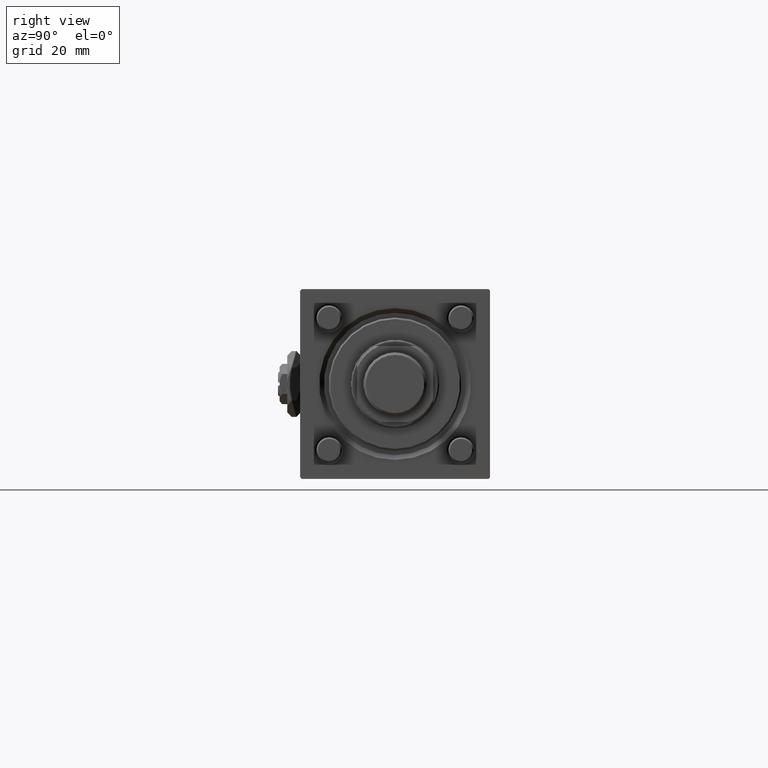
[diagram: clean part render]
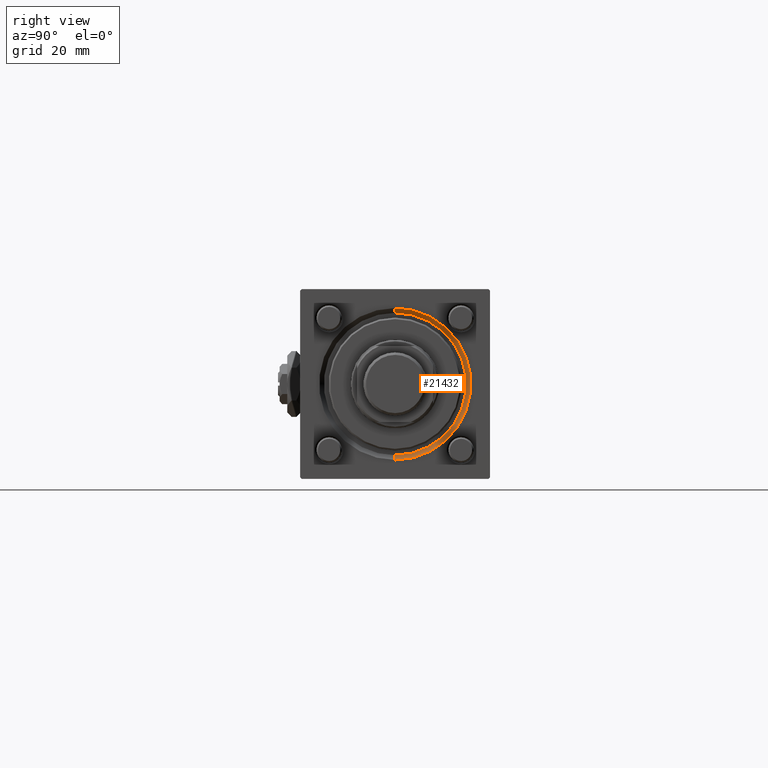
[diagram: same view with one face highlighted and labeled with its STEP entity id]
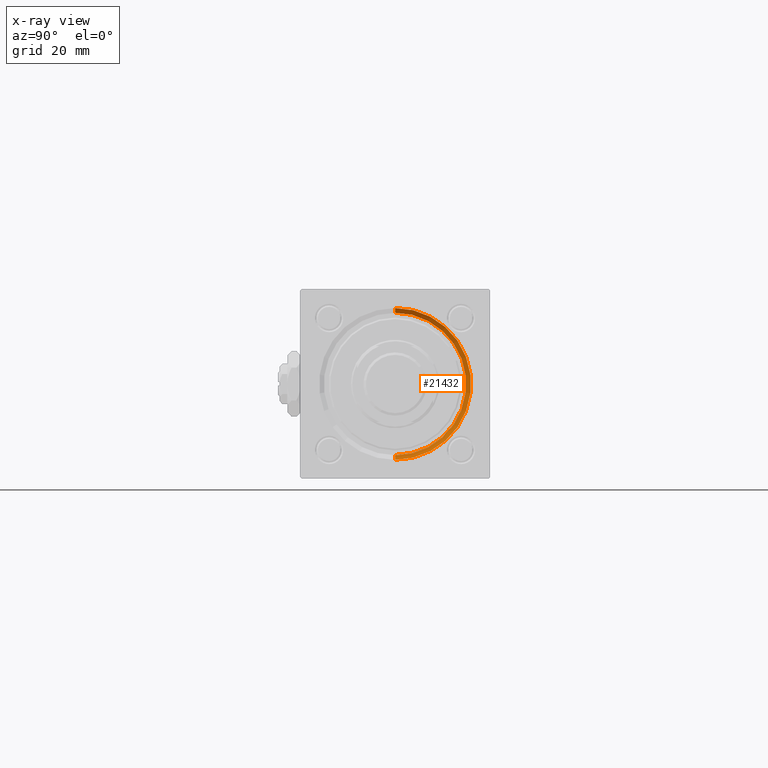
[diagram: x-ray of the same camera — body ghosted, the highlighted face saturated]
A machine part, right view. The second image highlights one B-rep face of the part: STEP entity #21432.
The next image is the same camera in x-ray: the body ghosted, the highlighted face saturated — about 0% of this face is hidden behind the body in this view.
In plain terms, the highlighted conical surface has half-angle 45 deg.
Its self-contained STEP definition (entity closure, byte-faithful):
#403 = VERTEX_POINT ( 'NONE', #49585 ) ;
#611 = CARTESIAN_POINT ( 'NONE',  ( 146.4999999999999432, 0.000000000000000000, -22.50000000000000355 ) ) ;
#1960 = EDGE_CURVE ( 'NONE', #42190, #403, #57785, .T. ) ;
#1976 = CIRCLE ( 'NONE', #14350, 24.00000000000003908 ) ;
#3452 = DIRECTION ( 'NONE',  ( 0.7071067811865524577, 0.000000000000000000, -0.7071067811865426878 ) ) ;
#7562 = EDGE_LOOP ( 'NONE', ( #41373, #47604, #16273, #44599 ) ) ;
#7695 = EDGE_CURVE ( 'NONE', #56061, #50267, #44359, .T. ) ;
#14252 = AXIS2_PLACEMENT_3D ( 'NONE', #46564, #19691, #33435 ) ;
#14350 = AXIS2_PLACEMENT_3D ( 'NONE', #28981, #56738, #47776 ) ;
#16273 = ORIENTED_EDGE ( 'NONE', *, *, #1960, .T. ) ;
#17036 = DIRECTION ( 'NONE',  ( 1.000000000000000000, 0.000000000000000000, 0.000000000000000000 ) ) ;
#19691 = DIRECTION ( 'NONE',  ( 1.000000000000000000, 0.000000000000000000, 0.000000000000000000 ) ) ;
#20473 = EDGE_CURVE ( 'NONE', #42190, #56061, #31391, .T. ) ;
#20536 = VECTOR ( 'NONE', #35400, 1000.000000000000000 ) ;
#21432 = ADVANCED_FACE ( 'NONE', ( #32843 ), #26656, .F. ) ;
#25698 = AXIS2_PLACEMENT_3D ( 'NONE', #30191, #17036, #34966 ) ;
#26656 = CONICAL_SURFACE ( 'NONE', #14252, 22.50000000000000355, 0.7853981633974415066 ) ;
#28981 = CARTESIAN_POINT ( 'NONE',  ( 148.0000000000000000, 0.000000000000000000, 0.000000000000000000 ) ) ;
#30191 = CARTESIAN_POINT ( 'NONE',  ( 146.4999999999999432, 0.000000000000000000, 0.000000000000000000 ) ) ;
#31391 = CIRCLE ( 'NONE', #25698, 22.50000000000000355 ) ;
#32843 = FACE_OUTER_BOUND ( 'NONE', #7562, .T. ) ;
#33435 = DIRECTION ( 'NONE',  ( 0.000000000000000000, 0.000000000000000000, -1.000000000000000000 ) ) ;
#33924 = EDGE_CURVE ( 'NONE', #50267, #403, #1976, .T. ) ;
#34825 = CARTESIAN_POINT ( 'NONE',  ( 146.4999999999999432, 2.755455298081545172E-15, 22.50000000000000355 ) ) ;
#34966 = DIRECTION ( 'NONE',  ( 0.000000000000000000, 0.000000000000000000, 1.000000000000000000 ) ) ;
#35381 = CARTESIAN_POINT ( 'NONE',  ( 146.4999999999999432, 0.000000000000000000, -22.50000000000000355 ) ) ;
#35400 = DIRECTION ( 'NONE',  ( 0.7071067811865524577, 8.659560562354874926E-17, 0.7071067811865426878 ) ) ;
#40418 = VECTOR ( 'NONE', #3452, 1000.000000000000000 ) ;
#41373 = ORIENTED_EDGE ( 'NONE', *, *, #7695, .F. ) ;
#42190 = VERTEX_POINT ( 'NONE', #611 ) ;
#44359 = LINE ( 'NONE', #34825, #20536 ) ;
#44599 = ORIENTED_EDGE ( 'NONE', *, *, #33924, .F. ) ;
#46564 = CARTESIAN_POINT ( 'NONE',  ( 146.4999999999999432, 0.000000000000000000, 0.000000000000000000 ) ) ;
#47604 = ORIENTED_EDGE ( 'NONE', *, *, #20473, .F. ) ;
#47776 = DIRECTION ( 'NONE',  ( 0.000000000000000000, 0.000000000000000000, 1.000000000000000000 ) ) ;
#49585 = CARTESIAN_POINT ( 'NONE',  ( 148.0000000000000000, 0.000000000000000000, -24.00000000000003908 ) ) ;
#49782 = CARTESIAN_POINT ( 'NONE',  ( 146.4999999999999432, 2.755455298081545172E-15, 22.50000000000000355 ) ) ;
#50267 = VERTEX_POINT ( 'NONE', #50443 ) ;
#50443 = CARTESIAN_POINT ( 'NONE',  ( 148.0000000000000000, 2.939152317953652628E-15, 24.00000000000003908 ) ) ;
#56061 = VERTEX_POINT ( 'NONE', #49782 ) ;
#56738 = DIRECTION ( 'NONE',  ( -1.000000000000000000, 0.000000000000000000, -0.000000000000000000 ) ) ;
#57785 = LINE ( 'NONE', #35381, #40418 ) ;